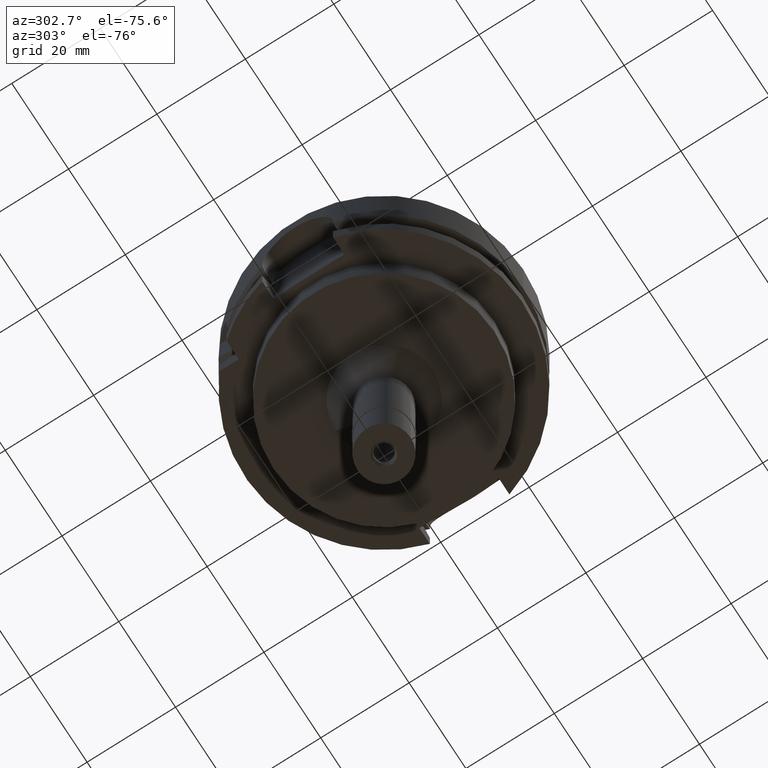
[diagram: clean part render]
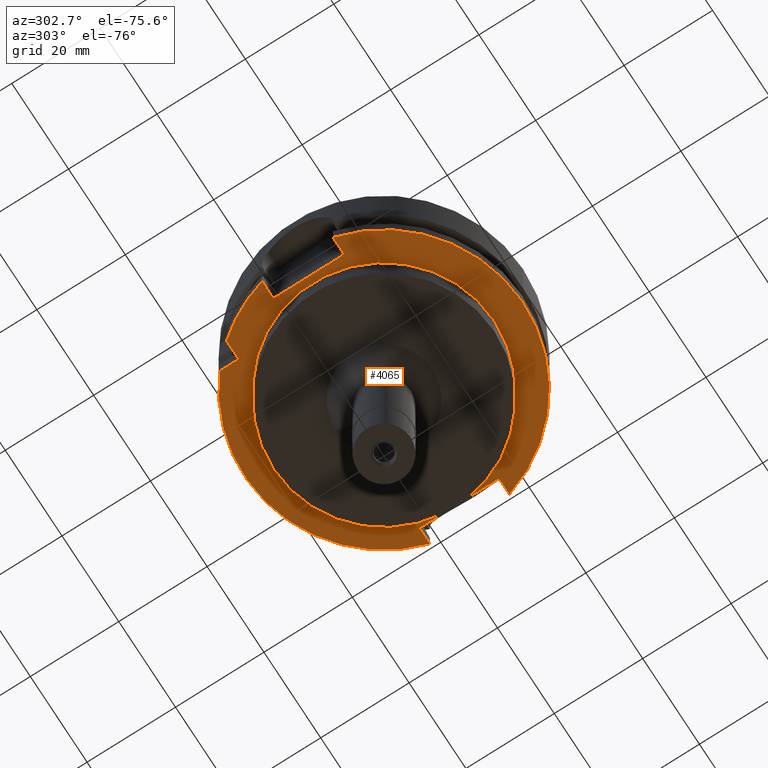
[diagram: same view with one face highlighted and labeled with its STEP entity id]
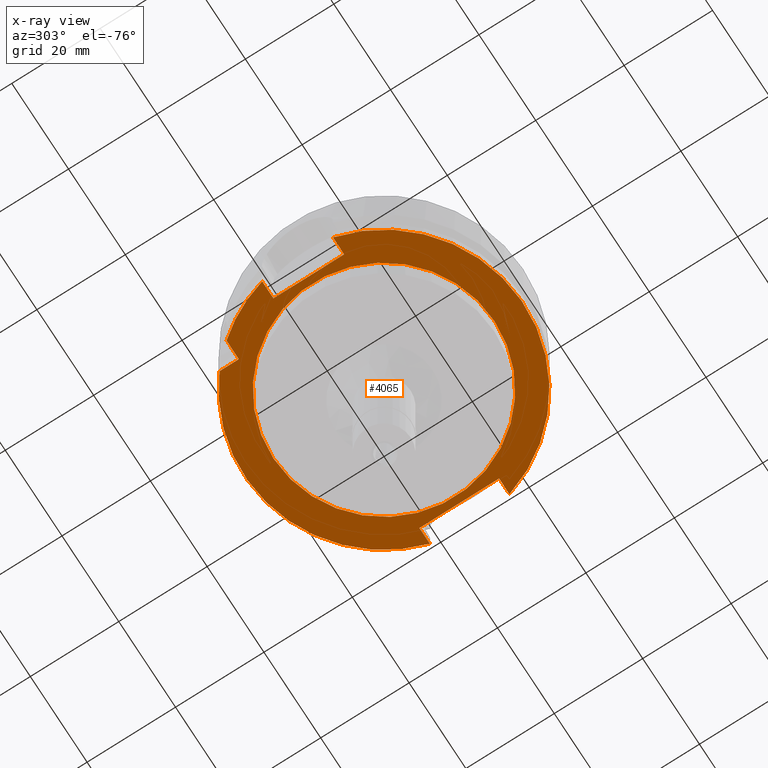
[diagram: x-ray of the same camera — body ghosted, the highlighted face saturated]
A machine part, auxiliary view. The second image highlights one B-rep face of the part: STEP entity #4065.
The next image is the same camera in x-ray: the body ghosted, the highlighted face saturated — about 0% of this face is hidden behind the body in this view.
In plain terms, the highlighted planar face has unit normal (0, 0, 1).
Its self-contained STEP definition (entity closure, byte-faithful):
#5 = ORIENTED_EDGE ( 'NONE', *, *, #1994, .F. ) ;
#10 = ORIENTED_EDGE ( 'NONE', *, *, #5482, .T. ) ;
#17 = EDGE_CURVE ( 'NONE', #3349, #2408, #427, .T. ) ;
#28 = CARTESIAN_POINT ( 'NONE',  ( -20.00000000000000000, 20.00000000000000000, -26.00000000000000000 ) ) ;
#83 = CIRCLE ( 'NONE', #3221, 31.50000000000000711 ) ;
#101 = EDGE_CURVE ( 'NONE', #1259, #3486, #2065, .T. ) ;
#159 = DIRECTION ( 'NONE',  ( 0.0000000000000000000, -1.000000000000000000, 0.0000000000000000000 ) ) ;
#169 = CARTESIAN_POINT ( 'NONE',  ( 0.0000000000000000000, 0.0000000000000000000, -26.00000000000000000 ) ) ;
#233 = ORIENTED_EDGE ( 'NONE', *, *, #4881, .F. ) ;
#248 = EDGE_CURVE ( 'NONE', #2384, #5100, #1709, .T. ) ;
#253 = VECTOR ( 'NONE', #2514, 1000.000000000000000 ) ;
#254 = VECTOR ( 'NONE', #4304, 1000.000000000000000 ) ;
#380 = ORIENTED_EDGE ( 'NONE', *, *, #2561, .T. ) ;
#407 = ORIENTED_EDGE ( 'NONE', *, *, #2635, .F. ) ;
#409 = LINE ( 'NONE', #28, #254 ) ;
#413 = ORIENTED_EDGE ( 'NONE', *, *, #5089, .F. ) ;
#427 = LINE ( 'NONE', #786, #4587 ) ;
#456 = DIRECTION ( 'NONE',  ( -1.000000000000000000, 8.776122650817999518E-14, 0.0000000000000000000 ) ) ;
#500 = VECTOR ( 'NONE', #2769, 1000.000000000000000 ) ;
#511 = CARTESIAN_POINT ( 'NONE',  ( 0.0000000000000000000, 0.0000000000000000000, -26.00000000000000000 ) ) ;
#548 = LINE ( 'NONE', #2218, #4573 ) ;
#677 = DIRECTION ( 'NONE',  ( 0.0000000000000000000, 0.0000000000000000000, 1.000000000000000000 ) ) ;
#786 = CARTESIAN_POINT ( 'NONE',  ( 30.18691769625000276, -9.000000000000000000, -26.00000000000000000 ) ) ;
#798 = EDGE_LOOP ( 'NONE', ( #5, #1949 ) ) ;
#860 = AXIS2_PLACEMENT_3D ( 'NONE', #4437, #2289, #159 ) ;
#862 = CARTESIAN_POINT ( 'NONE',  ( 26.50000000000000000, -9.000000000000000000, -26.00000000000000000 ) ) ;
#970 = VERTEX_POINT ( 'NONE', #4285 ) ;
#1055 = CIRCLE ( 'NONE', #4472, 25.00000000000000000 ) ;
#1062 = EDGE_CURVE ( 'NONE', #5278, #970, #548, .T. ) ;
#1136 = CARTESIAN_POINT ( 'NONE',  ( -30.46719547316000032, 8.000000000000000000, -26.00000000000000000 ) ) ;
#1187 = DIRECTION ( 'NONE',  ( 0.0000000000000000000, 0.0000000000000000000, -1.000000000000000000 ) ) ;
#1196 = DIRECTION ( 'NONE',  ( 1.000000000000000000, 0.0000000000000000000, 0.0000000000000000000 ) ) ;
#1259 = VERTEX_POINT ( 'NONE', #2414 ) ;
#1284 = CARTESIAN_POINT ( 'NONE',  ( -20.00000000000000000, 24.33618704727999926, -26.00000000000000000 ) ) ;
#1412 = CARTESIAN_POINT ( 'NONE',  ( -26.50000000000000000, -8.000000000000000000, -26.00000000000000000 ) ) ;
#1510 = AXIS2_PLACEMENT_3D ( 'NONE', #2835, #677, #3818 ) ;
#1562 = EDGE_CURVE ( 'NONE', #3061, #4629, #3708, .T. ) ;
#1599 = CIRCLE ( 'NONE', #1510, 31.50000000000000000 ) ;
#1645 = CARTESIAN_POINT ( 'NONE',  ( -26.50000000000000000, -8.000000000000000000, -26.00000000000000000 ) ) ;
#1658 = EDGE_CURVE ( 'NONE', #5278, #1763, #1599, .T. ) ;
#1686 = LINE ( 'NONE', #862, #3743 ) ;
#1709 = CIRCLE ( 'NONE', #5293, 25.00000000000000000 ) ;
#1763 = VERTEX_POINT ( 'NONE', #1284 ) ;
#1839 = LINE ( 'NONE', #1412, #500 ) ;
#1856 = CIRCLE ( 'NONE', #860, 31.50000000000000000 ) ;
#1899 = CARTESIAN_POINT ( 'NONE',  ( 0.0000000000000000000, 25.00000000000000000, -26.00000000000000000 ) ) ;
#1949 = ORIENTED_EDGE ( 'NONE', *, *, #248, .F. ) ;
#1964 = ORIENTED_EDGE ( 'NONE', *, *, #101, .F. ) ;
#1994 = EDGE_CURVE ( 'NONE', #5100, #2384, #1055, .T. ) ;
#2065 = LINE ( 'NONE', #1645, #253 ) ;
#2218 = CARTESIAN_POINT ( 'NONE',  ( 30.18691769625000276, 9.000000000000000000, -26.00000000000000000 ) ) ;
#2268 = ORIENTED_EDGE ( 'NONE', *, *, #4340, .T. ) ;
#2287 = DIRECTION ( 'NONE',  ( -0.7725773665802099233, 0.6349206349206079070, 0.0000000000000000000 ) ) ;
#2289 = DIRECTION ( 'NONE',  ( 0.0000000000000000000, 0.0000000000000000000, 1.000000000000000000 ) ) ;
#2300 = DIRECTION ( 'NONE',  ( -1.000000000000000000, 7.275179563199999529E-14, 0.0000000000000000000 ) ) ;
#2334 = DIRECTION ( 'NONE',  ( 0.0000000000000000000, 1.000000000000000000, 0.0000000000000000000 ) ) ;
#2345 = ORIENTED_EDGE ( 'NONE', *, *, #1562, .F. ) ;
#2384 = VERTEX_POINT ( 'NONE', #4581 ) ;
#2408 = VERTEX_POINT ( 'NONE', #5477 ) ;
#2414 = CARTESIAN_POINT ( 'NONE',  ( -26.50000000000000000, -8.000000000000000000, -26.00000000000000000 ) ) ;
#2486 = FACE_BOUND ( 'NONE', #798, .T. ) ;
#2514 = DIRECTION ( 'NONE',  ( -1.000000000000000000, -8.686570378870999660E-14, 0.0000000000000000000 ) ) ;
#2561 = EDGE_CURVE ( 'NONE', #3061, #1763, #409, .T. ) ;
#2602 = ORIENTED_EDGE ( 'NONE', *, *, #17, .F. ) ;
#2635 = EDGE_CURVE ( 'NONE', #4629, #2728, #83, .T. ) ;
#2720 = DIRECTION ( 'NONE',  ( 0.0000000000000000000, 0.0000000000000000000, 1.000000000000000000 ) ) ;
#2728 = VERTEX_POINT ( 'NONE', #1136 ) ;
#2769 = DIRECTION ( 'NONE',  ( 0.0000000000000000000, 1.000000000000000000, 0.0000000000000000000 ) ) ;
#2833 = PLANE ( 'NONE',  #3576 ) ;
#2835 = CARTESIAN_POINT ( 'NONE',  ( 0.0000000000000000000, 0.0000000000000000000, -26.00000000000000000 ) ) ;
#2961 = CARTESIAN_POINT ( 'NONE',  ( 0.0000000000000000000, 0.0000000000000000000, -26.00000000000000000 ) ) ;
#2974 = ORIENTED_EDGE ( 'NONE', *, *, #1658, .F. ) ;
#2996 = DIRECTION ( 'NONE',  ( -1.000000000000000000, -6.889739586341000002E-14, 0.0000000000000000000 ) ) ;
#3061 = VERTEX_POINT ( 'NONE', #3926 ) ;
#3125 = DIRECTION ( 'NONE',  ( 0.0000000000000000000, 0.0000000000000000000, -1.000000000000000000 ) ) ;
#3221 = AXIS2_PLACEMENT_3D ( 'NONE', #511, #2720, #2287 ) ;
#3258 = ORIENTED_EDGE ( 'NONE', *, *, #1062, .T. ) ;
#3349 = VERTEX_POINT ( 'NONE', #4867 ) ;
#3376 = DIRECTION ( 'NONE',  ( 0.0000000000000000000, 1.000000000000000000, 0.0000000000000000000 ) ) ;
#3481 = CARTESIAN_POINT ( 'NONE',  ( -26.50000000000000000, 8.000000000000000000, -26.00000000000000000 ) ) ;
#3486 = VERTEX_POINT ( 'NONE', #5400 ) ;
#3576 = AXIS2_PLACEMENT_3D ( 'NONE', #3755, #5469, #1196 ) ;
#3608 = VERTEX_POINT ( 'NONE', #5092 ) ;
#3708 = LINE ( 'NONE', #4948, #5552 ) ;
#3743 = VECTOR ( 'NONE', #3376, 1000.000000000000000 ) ;
#3755 = CARTESIAN_POINT ( 'NONE',  ( 0.0000000000000000000, 0.0000000000000000000, -26.00000000000000000 ) ) ;
#3818 = DIRECTION ( 'NONE',  ( 0.0000000000000000000, 1.000000000000000000, 0.0000000000000000000 ) ) ;
#3926 = CARTESIAN_POINT ( 'NONE',  ( -20.00000000000000000, 20.00000000000000000, -26.00000000000000000 ) ) ;
#4065 = ADVANCED_FACE ( 'NONE', ( #4512, #2486 ), #2833, .F. ) ;
#4067 = CARTESIAN_POINT ( 'NONE',  ( -24.33618704727999926, 20.00000000000000000, -26.00000000000000000 ) ) ;
#4134 = CARTESIAN_POINT ( 'NONE',  ( 30.18691769625000276, 9.000000000000000000, -26.00000000000000000 ) ) ;
#4285 = CARTESIAN_POINT ( 'NONE',  ( 26.50000000000000000, 9.000000000000000000, -26.00000000000000000 ) ) ;
#4304 = DIRECTION ( 'NONE',  ( 1.556703139445999911E-13, 1.000000000000000000, 0.0000000000000000000 ) ) ;
#4340 = EDGE_CURVE ( 'NONE', #1259, #3608, #1839, .T. ) ;
#4437 = CARTESIAN_POINT ( 'NONE',  ( 0.0000000000000000000, 0.0000000000000000000, -26.00000000000000000 ) ) ;
#4439 = EDGE_LOOP ( 'NONE', ( #2974, #3258, #233, #2602, #413, #1964, #2268, #10, #407, #2345, #380 ) ) ;
#4472 = AXIS2_PLACEMENT_3D ( 'NONE', #169, #3125, #2334 ) ;
#4512 = FACE_OUTER_BOUND ( 'NONE', #4439, .T. ) ;
#4573 = VECTOR ( 'NONE', #2300, 1000.000000000000000 ) ;
#4581 = CARTESIAN_POINT ( 'NONE',  ( 0.0000000000000000000, -25.00000000000000000, -26.00000000000000000 ) ) ;
#4587 = VECTOR ( 'NONE', #2996, 1000.000000000000000 ) ;
#4595 = DIRECTION ( 'NONE',  ( 0.0000000000000000000, -1.000000000000000000, 0.0000000000000000000 ) ) ;
#4629 = VERTEX_POINT ( 'NONE', #4067 ) ;
#4742 = LINE ( 'NONE', #3481, #4795 ) ;
#4795 = VECTOR ( 'NONE', #456, 1000.000000000000000 ) ;
#4867 = CARTESIAN_POINT ( 'NONE',  ( 30.18691769625000276, -9.000000000000000000, -26.00000000000000000 ) ) ;
#4881 = EDGE_CURVE ( 'NONE', #2408, #970, #1686, .T. ) ;
#4948 = CARTESIAN_POINT ( 'NONE',  ( -20.00000000000000000, 20.00000000000000000, -26.00000000000000000 ) ) ;
#5089 = EDGE_CURVE ( 'NONE', #3486, #3349, #1856, .T. ) ;
#5092 = CARTESIAN_POINT ( 'NONE',  ( -26.50000000000000000, 8.000000000000000000, -26.00000000000000000 ) ) ;
#5100 = VERTEX_POINT ( 'NONE', #1899 ) ;
#5278 = VERTEX_POINT ( 'NONE', #4134 ) ;
#5293 = AXIS2_PLACEMENT_3D ( 'NONE', #2961, #1187, #4595 ) ;
#5311 = DIRECTION ( 'NONE',  ( -1.000000000000000000, -1.540316790609000194E-13, 0.0000000000000000000 ) ) ;
#5400 = CARTESIAN_POINT ( 'NONE',  ( -30.46719547316000032, -8.000000000000000000, -26.00000000000000000 ) ) ;
#5469 = DIRECTION ( 'NONE',  ( 0.0000000000000000000, 0.0000000000000000000, 1.000000000000000000 ) ) ;
#5477 = CARTESIAN_POINT ( 'NONE',  ( 26.50000000000000000, -9.000000000000000000, -26.00000000000000000 ) ) ;
#5482 = EDGE_CURVE ( 'NONE', #3608, #2728, #4742, .T. ) ;
#5552 = VECTOR ( 'NONE', #5311, 1000.000000000000000 ) ;